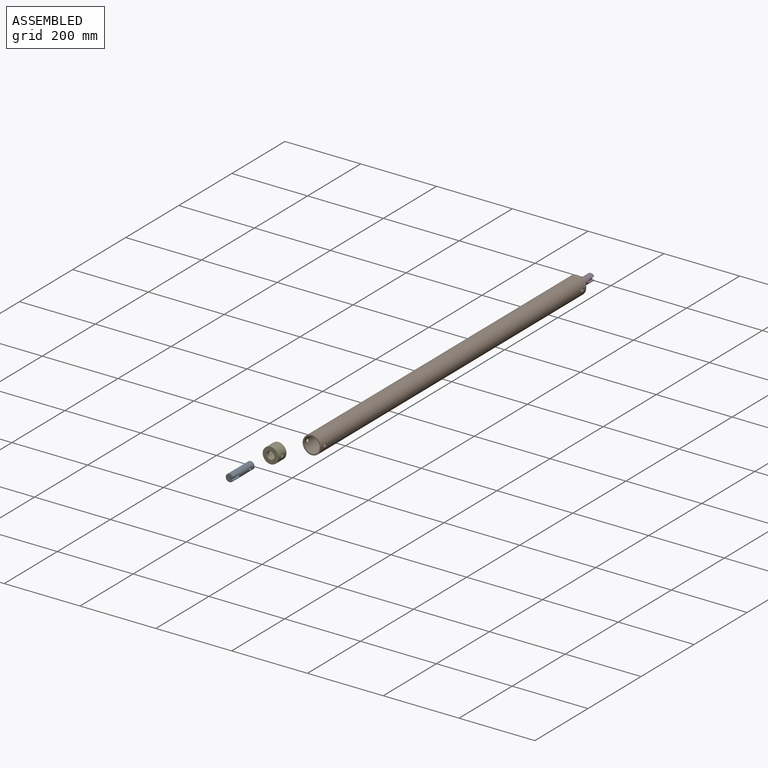
[diagram: assembled view]
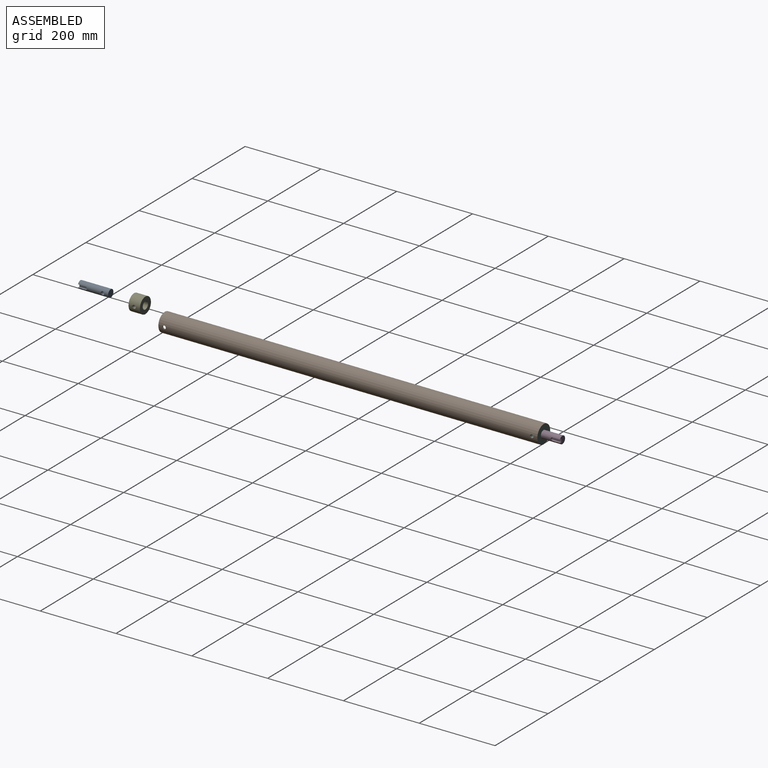
[diagram: assembled view, second angle]
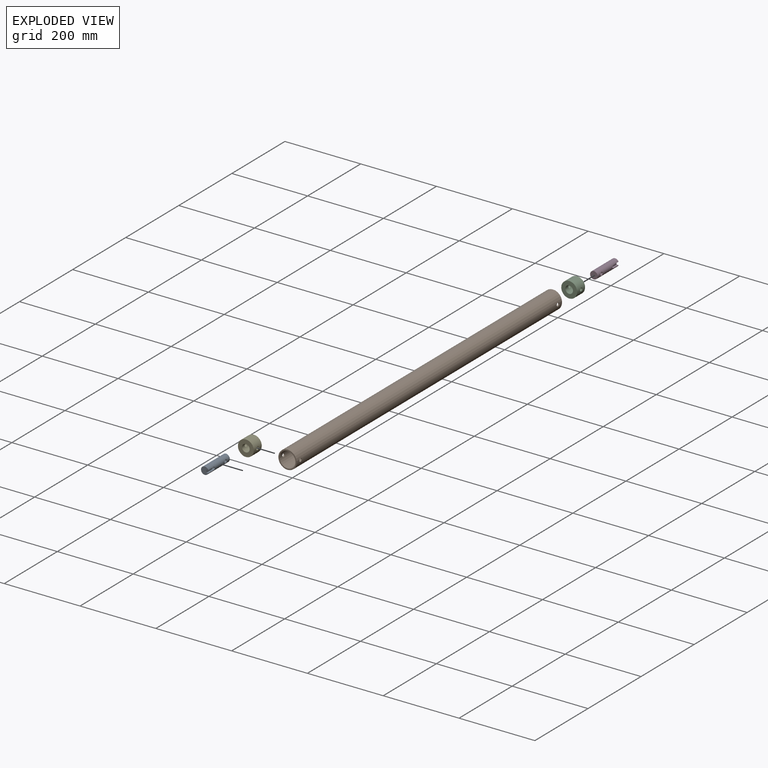
[diagram: exploded view]
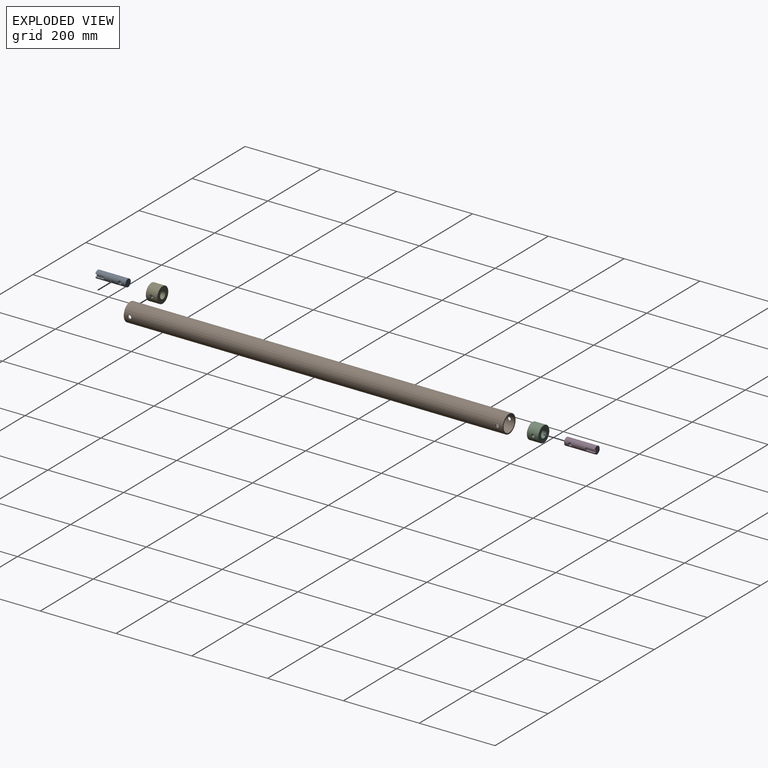
[diagram: exploded view, second angle]
ASSEMBLY  parts=5 mates=2
PART A: 8 faces, bbox 20x80x20 mm
  f0: cylinder r=10mm len=80mm, axis (0,1,0), area 4705.7mm2, adj f1,f2,f3,f4,f5,f6
  f1: plane 20x19.17mm, normal (0,-1,0), area 268.3mm2, adj f0,f5,f6,f7
  f2: plane 20x20mm, normal (0,1,0), area 314.2mm2, adj f0
  f3: cylinder r=4.5mm len=20mm, axis (1,0,0), area 535.7mm2, adj f0
  f4: cylinder r=4mm len=8mm, axis (1,0,0), area 70.2mm2, adj f0,f5,f6,f7
  f5: plane 20x5.17mm, normal (0,0,1), area 103.3mm2, adj f0,f1,f4,f7
  f6: plane 20x5.17mm, normal (0,0,-1), area 103.3mm2, adj f0,f1,f4,f7
  f7: plane 24x8mm, normal (1,0,0), area 185.1mm2, adj f1,f4,f5,f6
PART B: 8 faces, bbox 48.3x1000x48.3 mm
  f0: cylinder r=20.9mm len=1000mm, axis (0,1,0), area 131062.9mm2, adj f2,f3,f4,f5,f6,f7
  f1: cylinder r=24.15mm len=1000mm, axis (0,1,0), area 151483.7mm2, adj f2,f3,f4,f5,f6,f7
  f2: plane 48.3x48.3mm, normal (0,-1,0), area 460mm2, adj f0,f1
  f3: plane 48.3x48.3mm, normal (0,1,0), area 460mm2, adj f0,f1
  f4: cylinder r=4.5mm len=9mm, axis (1,0,0), area 92.8mm2, adj f0,f1
  f5: cylinder r=4.5mm len=9mm, axis (1,0,0), area 92.8mm2, adj f0,f1
  f6: cylinder r=4.5mm len=9mm, axis (1,0,0), area 92.8mm2, adj f0,f1
  f7: cylinder r=4.5mm len=9mm, axis (1,0,0), area 92.8mm2, adj f0,f1
PART C: 6 faces, bbox 41.8x30x41.8 mm
  f0: cylinder r=10mm len=30mm, axis (0,1,0), area 1754.1mm2, adj f2,f3,f4,f5
  f1: cylinder r=20.9mm len=41.8mm, axis (0,1,0), area 3811.7mm2, adj f2,f3,f4,f5
  f2: plane 41.8x41.8mm, normal (0,-1,0), area 1058.1mm2, adj f0,f1
  f3: plane 41.8x41.8mm, normal (0,1,0), area 1058.1mm2, adj f0,f1
  f4: cylinder r=4.5mm len=11.97mm, axis (1,0,0), area 316.2mm2, adj f0,f1
  f5: cylinder r=4.5mm len=11.97mm, axis (1,0,0), area 316.2mm2, adj f0,f1
PART D: same geometry as A
PART E: same geometry as C
PLACE A t=(-60.24,-1156.22,14.18)mm
PLACE B t=(-19.21,15,7.64)mm
PLACE C rot(axis=(1,0,0),180deg) t=(-19.21,-15,7.64)mm
PLACE D rot(axis=(1,0,0),180deg) t=(-18.04,-15,7.64)mm
PLACE E t=(-54.03,-1060.42,13.72)mm
MATE fastened D.f1 <-> C.f1  axis (0,1,0) through (-19.21,65,7.64)mm
MATE fastened C.f0 <-> B.f0  axis (0,1,0) through (-19.21,15,7.64)mm
